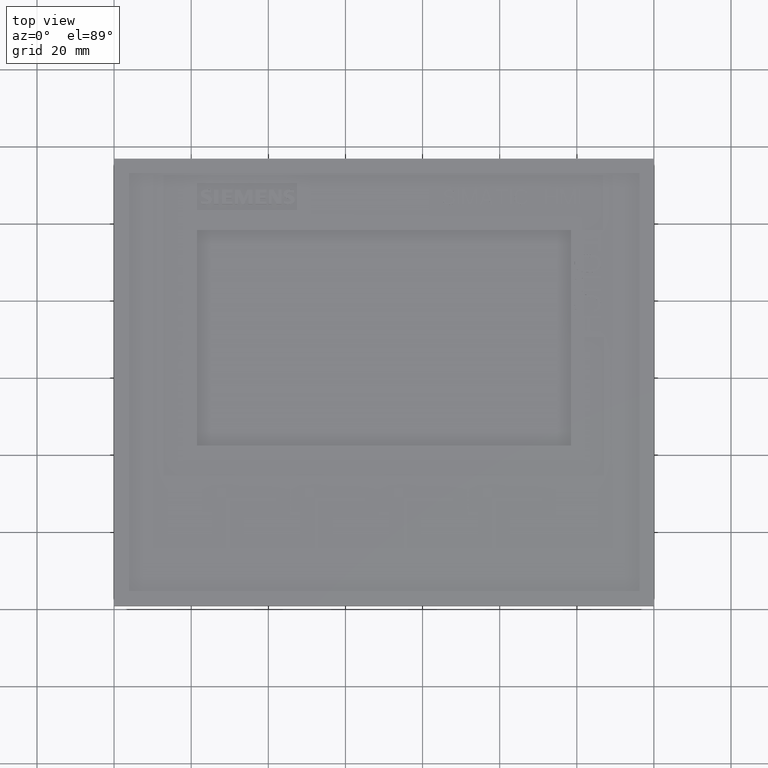
[diagram: clean part render]
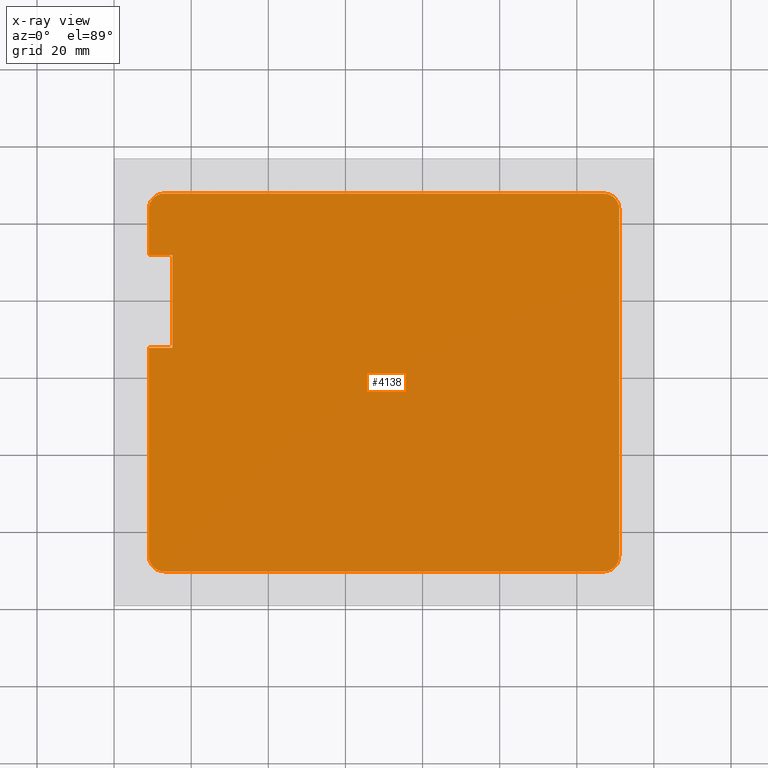
[diagram: x-ray — body ghosted, one internal face saturated and labeled with its STEP entity id]
A machine part, top view, then the same camera in x-ray: the body is ghosted and one INTERNAL B-rep face — a face not visible from any outside direction — is saturated and labeled: STEP entity #4138.
In plain terms, the highlighted planar face has unit normal (0, 0, -1).
Its self-contained STEP definition (entity closure, byte-faithful):
#685=CIRCLE('',#44069,4.);
#687=CIRCLE('',#44075,4.);
#689=CIRCLE('',#44078,4.);
#691=CIRCLE('',#44081,4.);
#4138=ADVANCED_FACE('',(#8465),#6484,.F.);
#6484=PLANE('',#44083);
#8465=FACE_OUTER_BOUND('',#10648,.T.);
#10648=EDGE_LOOP('',(#13590,#13591,#13592,#13593,#13594,#13595,#13596,#13597,
#13598,#13599,#13600,#13601));
#13590=ORIENTED_EDGE('',*,*,#28493,.T.);
#13591=ORIENTED_EDGE('',*,*,#28437,.T.);
#13592=ORIENTED_EDGE('',*,*,#28495,.F.);
#13593=ORIENTED_EDGE('',*,*,#28545,.F.);
#13594=ORIENTED_EDGE('',*,*,#28575,.F.);
#13595=ORIENTED_EDGE('',*,*,#28580,.F.);
#13596=ORIENTED_EDGE('',*,*,#28559,.F.);
#13597=ORIENTED_EDGE('',*,*,#28578,.F.);
#13598=ORIENTED_EDGE('',*,*,#28551,.F.);
#13599=ORIENTED_EDGE('',*,*,#28582,.F.);
#13600=ORIENTED_EDGE('',*,*,#28501,.F.);
#13601=ORIENTED_EDGE('',*,*,#28583,.T.);
#24601=VERTEX_POINT('',#56832);
#24602=VERTEX_POINT('',#56834);
#24643=VERTEX_POINT('',#56944);
#24644=VERTEX_POINT('',#56948);
#24648=VERTEX_POINT('',#56958);
#24650=VERTEX_POINT('',#56961);
#24690=VERTEX_POINT('',#57107);
#24696=VERTEX_POINT('',#57120);
#24697=VERTEX_POINT('',#57122);
#24704=VERTEX_POINT('',#57137);
#24705=VERTEX_POINT('',#57139);
#24720=VERTEX_POINT('',#57170);
#28437=EDGE_CURVE('',#24602,#24601,#34080,.T.);
#28493=EDGE_CURVE('',#24643,#24602,#34132,.T.);
#28495=EDGE_CURVE('',#24644,#24601,#34134,.T.);
#28501=EDGE_CURVE('',#24648,#24650,#34140,.T.);
#28545=EDGE_CURVE('',#24690,#24644,#685,.T.);
#28551=EDGE_CURVE('',#24696,#24697,#34180,.T.);
#28559=EDGE_CURVE('',#24704,#24705,#34188,.T.);
#28575=EDGE_CURVE('',#24720,#24690,#34204,.T.);
#28578=EDGE_CURVE('',#24697,#24704,#687,.T.);
#28580=EDGE_CURVE('',#24705,#24720,#689,.T.);
#28582=EDGE_CURVE('',#24650,#24696,#691,.T.);
#28583=EDGE_CURVE('',#24648,#24643,#34206,.T.);
#34080=LINE('',#56833,#38984);
#34132=LINE('',#56943,#39036);
#34134=LINE('',#56947,#39038);
#34140=LINE('',#56960,#39044);
#34180=LINE('',#57121,#39084);
#34188=LINE('',#57138,#39092);
#34204=LINE('',#57171,#39108);
#34206=LINE('',#57183,#39110);
#38984=VECTOR('',#46642,1.);
#39036=VECTOR('',#46728,1.);
#39038=VECTOR('',#46732,1.);
#39044=VECTOR('',#46740,1.);
#39084=VECTOR('',#46800,1.);
#39092=VECTOR('',#46810,1.);
#39108=VECTOR('',#46828,1.);
#39110=VECTOR('',#46850,1.);
#44069=AXIS2_PLACEMENT_3D('',#57108,#46791,#46792);
#44075=AXIS2_PLACEMENT_3D('',#57175,#46834,#46835);
#44078=AXIS2_PLACEMENT_3D('',#57178,#46840,#46841);
#44081=AXIS2_PLACEMENT_3D('',#57181,#46846,#46847);
#44083=AXIS2_PLACEMENT_3D('',#57184,#46851,#46852);
#46642=DIRECTION('',(1.,0.,0.));
#46728=DIRECTION('',(0.,1.,0.));
#46732=DIRECTION('',(0.,-1.,0.));
#46740=DIRECTION('',(0.,-1.,0.));
#46791=DIRECTION('',(0.,0.,-1.));
#46792=DIRECTION('',(0.,0.999999999999999,0.));
#46800=DIRECTION('',(-1.,0.,0.));
#46810=DIRECTION('',(0.,1.,0.));
#46828=DIRECTION('',(1.,0.,0.));
#46834=DIRECTION('',(0.,0.,-1.));
#46835=DIRECTION('',(0.,-1.,0.));
#46840=DIRECTION('',(0.,0.,-1.));
#46841=DIRECTION('',(-0.999999999999999,0.,0.));
#46846=DIRECTION('',(0.,0.,-1.));
#46847=DIRECTION('',(1.,0.,0.));
#46850=DIRECTION('',(-1.,0.,0.));
#46851=DIRECTION('',(0.,0.,-1.));
#46852=DIRECTION('',(-1.,0.,0.));
#56832=CARTESIAN_POINT('',(61.,-9.00000000000001,-6.));
#56833=CARTESIAN_POINT('',(-57.,-9.00000000000001,-6.));
#56834=CARTESIAN_POINT('',(54.9,-9.00000000000001,-6.));
#56943=CARTESIAN_POINT('',(54.9,45.,-6.));
#56944=CARTESIAN_POINT('',(54.9,-33.,-6.));
#56947=CARTESIAN_POINT('',(61.,45.,-6.));
#56948=CARTESIAN_POINT('',(61.,45.,-6.));
#56958=CARTESIAN_POINT('',(61.,-33.,-6.));
#56960=CARTESIAN_POINT('',(61.,45.,-6.));
#56961=CARTESIAN_POINT('',(61.,-45.,-6.));
#57107=CARTESIAN_POINT('',(57.,49.,-6.));
#57108=CARTESIAN_POINT('',(57.,45.,-6.));
#57120=CARTESIAN_POINT('',(57.,-49.,-6.));
#57121=CARTESIAN_POINT('',(57.,-49.,-6.));
#57122=CARTESIAN_POINT('',(-57.,-49.,-6.));
#57137=CARTESIAN_POINT('',(-61.,-45.,-6.));
#57138=CARTESIAN_POINT('',(-61.,-45.,-6.));
#57139=CARTESIAN_POINT('',(-61.,45.,-6.));
#57170=CARTESIAN_POINT('',(-57.,49.,-6.));
#57171=CARTESIAN_POINT('',(-57.,49.,-6.));
#57175=CARTESIAN_POINT('',(-57.,-45.,-6.));
#57178=CARTESIAN_POINT('',(-57.,45.,-6.));
#57181=CARTESIAN_POINT('',(57.,-45.,-6.));
#57183=CARTESIAN_POINT('',(-57.,-33.,-6.));
#57184=CARTESIAN_POINT('',(-57.,45.,-6.));